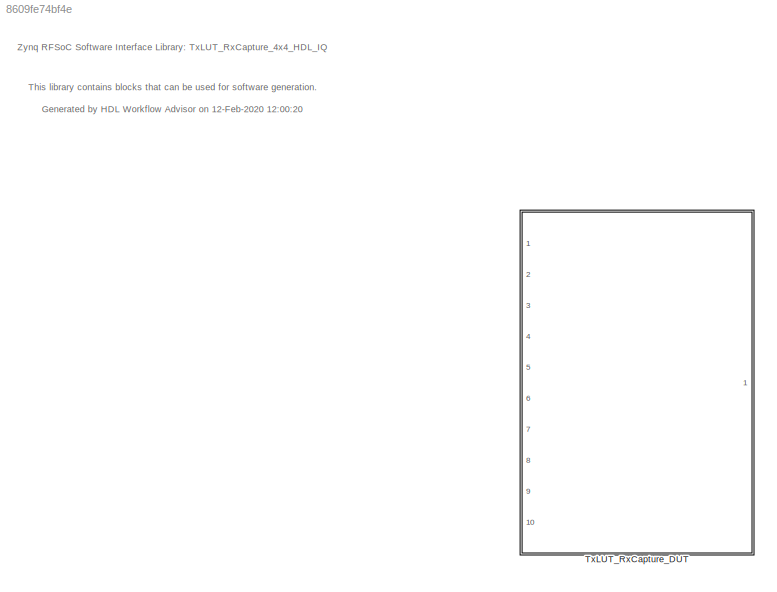
MODEL slx_8609fe74bf4e
KIND library
CONFIG AbsTol = auto
CONFIG EnableMultiTasking = off
CONFIG FixedStep = auto
CONFIG MaxStep = auto
CONFIG MinStep = auto
CONFIG RelTol = 1e-3
CONFIG SampleTimeConstraint = Unconstrained
CONFIG Solver = VariableStepAuto
CONFIG SolverName = VariableStepAuto
CONFIG StartTime = 0.0
CONFIG StopTime = 10.0
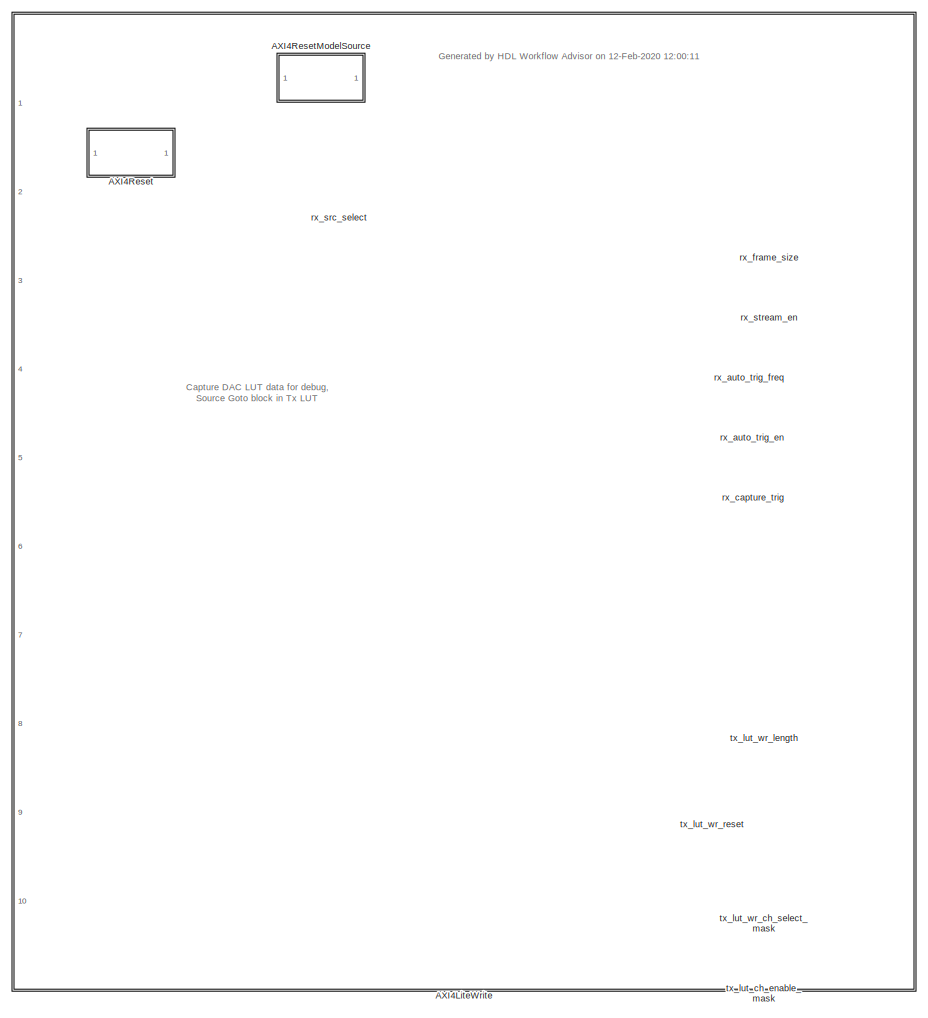
[diagram: TxLUT_RxCapture_DUT - part 1/2, center side, full height]
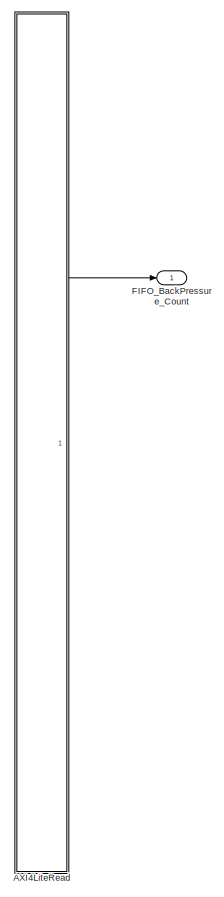
[diagram: TxLUT_RxCapture_DUT - part 2/2, right side, full height]
BLOCK [SubSystem] TxLUT_RxCapture_DUT
  Ports = [10, 1]
  RequestExecContextInheritance = off
  TreatAsAtomicUnit = on
  TreatAsGroupedWhenPropagatingVariantConditions = off
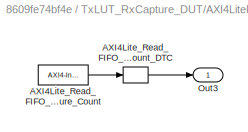
BLOCK [SubSystem] TxLUT_RxCapture_DUT/AXI4LiteRead
  Ports = [0, 1]
  Priority = 10
  RequestExecContextInheritance = off
BLOCK [Reference] TxLUT_RxCapture_DUT/AXI4LiteRead/AXI4Lite_Read_FIFO_BackPressure_Count  REF=axiinterfacelib/AXI4-Interface Read
  Ports = [0, 1]
  Priority = 5
  SourceBlock = axiinterfacelib/AXI4-Interface Read
  SourceProductBaseCode = ECZYNQ7000
  SourceProductName = Embedded Coder Support Package for Xilinx Zynq Platform
  SourceType = AXI4-Interface Read
BLOCK [DataTypeConversion] TxLUT_RxCapture_DUT/AXI4LiteRead/AXI4Lite_Read_FIFO_BackPressure_Count_DTC
  ConvertRealWorld = Stored Integer (SI)
  OutDataTypeStr = fixdt('uint32')
  RndMeth = Floor
  SaturateOnIntegerOverflow = off
BLOCK [Outport] TxLUT_RxCapture_DUT/AXI4LiteRead/Out3
  IconDisplay = Port number
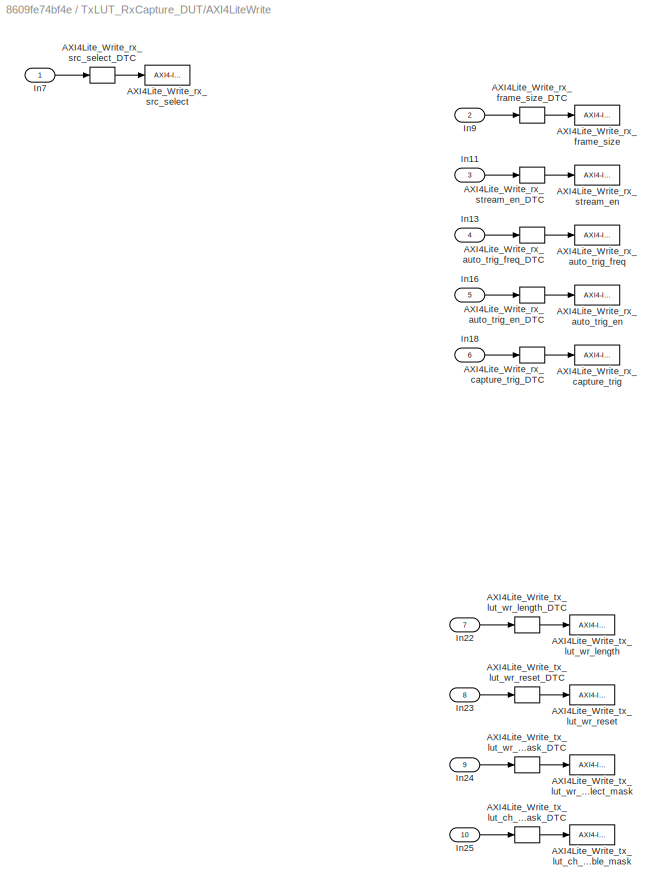
BLOCK [SubSystem] TxLUT_RxCapture_DUT/AXI4LiteWrite
  Ports = [10]
  Priority = 1
  RequestExecContextInheritance = off
BLOCK [Reference] TxLUT_RxCapture_DUT/AXI4LiteWrite/AXI4Lite_Write_rx_auto_trig_en  REF=axiinterfacelib/AXI4-Interface Write
  Ports = [1]
  Priority = 20
  SourceBlock = axiinterfacelib/AXI4-Interface Write
  SourceProductBaseCode = ECZYNQ7000
  SourceProductName = Embedded Coder Support Package for Xilinx Zynq Platform
  SourceType = AXI4-Interface Write
BLOCK [DataTypeConversion] TxLUT_RxCapture_DUT/AXI4LiteWrite/AXI4Lite_Write_rx_auto_trig_en_DTC
  ConvertRealWorld = Stored Integer (SI)
  OutDataTypeStr = uint32
  RndMeth = Floor
  SaturateOnIntegerOverflow = off
BLOCK [Reference] TxLUT_RxCapture_DUT/AXI4LiteWrite/AXI4Lite_Write_rx_auto_trig_freq  REF=axiinterfacelib/AXI4-Interface Write
  Ports = [1]
  Priority = 19
  SourceBlock = axiinterfacelib/AXI4-Interface Write
  SourceProductBaseCode = ECZYNQ7000
  SourceProductName = Embedded Coder Support Package for Xilinx Zynq Platform
  SourceType = AXI4-Interface Write
BLOCK [DataTypeConversion] TxLUT_RxCapture_DUT/AXI4LiteWrite/AXI4Lite_Write_rx_auto_trig_freq_DTC
  ConvertRealWorld = Stored Integer (SI)
  OutDataTypeStr = uint32
  RndMeth = Floor
  SaturateOnIntegerOverflow = off
BLOCK [Reference] TxLUT_RxCapture_DUT/AXI4LiteWrite/AXI4Lite_Write_rx_capture_trig  REF=axiinterfacelib/AXI4-Interface Write
  Ports = [1]
  Priority = 16
  SourceBlock = axiinterfacelib/AXI4-Interface Write
  SourceProductBaseCode = ECZYNQ7000
  SourceProductName = Embedded Coder Support Package for Xilinx Zynq Platform
  SourceType = AXI4-Interface Write
BLOCK [DataTypeConversion] TxLUT_RxCapture_DUT/AXI4LiteWrite/AXI4Lite_Write_rx_capture_trig_DTC
  ConvertRealWorld = Stored Integer (SI)
  OutDataTypeStr = uint32
  RndMeth = Floor
  SaturateOnIntegerOverflow = off
BLOCK [Reference] TxLUT_RxCapture_DUT/AXI4LiteWrite/AXI4Lite_Write_rx_frame_size  REF=axiinterfacelib/AXI4-Interface Write
  Ports = [1]
  Priority = 17
  SourceBlock = axiinterfacelib/AXI4-Interface Write
  SourceProductBaseCode = ECZYNQ7000
  SourceProductName = Embedded Coder Support Package for Xilinx Zynq Platform
  SourceType = AXI4-Interface Write
BLOCK [DataTypeConversion] TxLUT_RxCapture_DUT/AXI4LiteWrite/AXI4Lite_Write_rx_frame_size_DTC
  ConvertRealWorld = Stored Integer (SI)
  OutDataTypeStr = uint32
  RndMeth = Floor
  SaturateOnIntegerOverflow = off
BLOCK [Reference] TxLUT_RxCapture_DUT/AXI4LiteWrite/AXI4Lite_Write_rx_src_select  REF=axiinterfacelib/AXI4-Interface Write
  Ports = [1]
  Priority = 21
  SourceBlock = axiinterfacelib/AXI4-Interface Write
  SourceProductBaseCode = ECZYNQ7000
  SourceProductName = Embedded Coder Support Package for Xilinx Zynq Platform
  SourceType = AXI4-Interface Write
BLOCK [DataTypeConversion] TxLUT_RxCapture_DUT/AXI4LiteWrite/AXI4Lite_Write_rx_src_select_DTC
  ConvertRealWorld = Stored Integer (SI)
  OutDataTypeStr = uint32
  RndMeth = Floor
  SaturateOnIntegerOverflow = off
BLOCK [Reference] TxLUT_RxCapture_DUT/AXI4LiteWrite/AXI4Lite_Write_rx_stream_en  REF=axiinterfacelib/AXI4-Interface Write
  Ports = [1]
  Priority = 18
  SourceBlock = axiinterfacelib/AXI4-Interface Write
  SourceProductBaseCode = ECZYNQ7000
  SourceProductName = Embedded Coder Support Package for Xilinx Zynq Platform
  SourceType = AXI4-Interface Write
BLOCK [DataTypeConversion] TxLUT_RxCapture_DUT/AXI4LiteWrite/AXI4Lite_Write_rx_stream_en_DTC
  ConvertRealWorld = Stored Integer (SI)
  OutDataTypeStr = uint32
  RndMeth = Floor
  SaturateOnIntegerOverflow = off
BLOCK [Reference] TxLUT_RxCapture_DUT/AXI4LiteWrite/AXI4Lite_Write_tx_lut_ch_enable_mask  REF=axiinterfacelib/AXI4-Interface Write
  Ports = [1]
  Priority = 25
  SourceBlock = axiinterfacelib/AXI4-Interface Write
  SourceProductBaseCode = ECZYNQ7000
  SourceProductName = Embedded Coder Support Package for Xilinx Zynq Platform
  SourceType = AXI4-Interface Write
BLOCK [DataTypeConversion] TxLUT_RxCapture_DUT/AXI4LiteWrite/AXI4Lite_Write_tx_lut_ch_enable_mask_DTC
  ConvertRealWorld = Stored Integer (SI)
  OutDataTypeStr = uint32
  RndMeth = Floor
  SaturateOnIntegerOverflow = off
BLOCK [Reference] TxLUT_RxCapture_DUT/AXI4LiteWrite/AXI4Lite_Write_tx_lut_wr_ch_select_mask  REF=axiinterfacelib/AXI4-Interface Write
  Ports = [1]
  Priority = 24
  SourceBlock = axiinterfacelib/AXI4-Interface Write
  SourceProductBaseCode = ECZYNQ7000
  SourceProductName = Embedded Coder Support Package for Xilinx Zynq Platform
  SourceType = AXI4-Interface Write
BLOCK [DataTypeConversion] TxLUT_RxCapture_DUT/AXI4LiteWrite/AXI4Lite_Write_tx_lut_wr_ch_select_mask_DTC
  ConvertRealWorld = Stored Integer (SI)
  OutDataTypeStr = uint32
  RndMeth = Floor
  SaturateOnIntegerOverflow = off
BLOCK [Reference] TxLUT_RxCapture_DUT/AXI4LiteWrite/AXI4Lite_Write_tx_lut_wr_length  REF=axiinterfacelib/AXI4-Interface Write
  Ports = [1]
  Priority = 22
  SourceBlock = axiinterfacelib/AXI4-Interface Write
  SourceProductBaseCode = ECZYNQ7000
  SourceProductName = Embedded Coder Support Package for Xilinx Zynq Platform
  SourceType = AXI4-Interface Write
BLOCK [DataTypeConversion] TxLUT_RxCapture_DUT/AXI4LiteWrite/AXI4Lite_Write_tx_lut_wr_length_DTC
  ConvertRealWorld = Stored Integer (SI)
  OutDataTypeStr = uint32
  RndMeth = Floor
  SaturateOnIntegerOverflow = off
BLOCK [Reference] TxLUT_RxCapture_DUT/AXI4LiteWrite/AXI4Lite_Write_tx_lut_wr_reset  REF=axiinterfacelib/AXI4-Interface Write
  Ports = [1]
  Priority = 23
  SourceBlock = axiinterfacelib/AXI4-Interface Write
  SourceProductBaseCode = ECZYNQ7000
  SourceProductName = Embedded Coder Support Package for Xilinx Zynq Platform
  SourceType = AXI4-Interface Write
BLOCK [DataTypeConversion] TxLUT_RxCapture_DUT/AXI4LiteWrite/AXI4Lite_Write_tx_lut_wr_reset_DTC
  ConvertRealWorld = Stored Integer (SI)
  OutDataTypeStr = uint32
  RndMeth = Floor
  SaturateOnIntegerOverflow = off
BLOCK [Inport] TxLUT_RxCapture_DUT/AXI4LiteWrite/In11
  IconDisplay = Port number
  Port = 3
BLOCK [Inport] TxLUT_RxCapture_DUT/AXI4LiteWrite/In13
  IconDisplay = Port number
  Port = 4
BLOCK [Inport] TxLUT_RxCapture_DUT/AXI4LiteWrite/In16
  IconDisplay = Port number
  Port = 5
BLOCK [Inport] TxLUT_RxCapture_DUT/AXI4LiteWrite/In18
  IconDisplay = Port number
  Port = 6
BLOCK [Inport] TxLUT_RxCapture_DUT/AXI4LiteWrite/In22
  IconDisplay = Port number
  Port = 7
BLOCK [Inport] TxLUT_RxCapture_DUT/AXI4LiteWrite/In23
  IconDisplay = Port number
  Port = 8
BLOCK [Inport] TxLUT_RxCapture_DUT/AXI4LiteWrite/In24
  IconDisplay = Port number
  Port = 9
BLOCK [Inport] TxLUT_RxCapture_DUT/AXI4LiteWrite/In25
  IconDisplay = Port number
  Port = 10
BLOCK [Inport] TxLUT_RxCapture_DUT/AXI4LiteWrite/In7
  IconDisplay = Port number
BLOCK [Inport] TxLUT_RxCapture_DUT/AXI4LiteWrite/In9
  IconDisplay = Port number
  Port = 2
BLOCK [SubSystem] TxLUT_RxCapture_DUT/AXI4Reset
  CopyFcn = cccopyfcn(gcb)
  OpenFcn = ccopenfcn('System Start Function')
  Ports = []
  RequestExecContextInheritance = off
BLOCK [SubSystem] TxLUT_RxCapture_DUT/AXI4ResetModelSource
  CopyFcn = cccopyfcn(gcb)
  OpenFcn = ccopenfcn('Model Source')
  Ports = []
  RequestExecContextInheritance = off
BLOCK [Outport] TxLUT_RxCapture_DUT/FIFO_BackPressure_Count
  IconDisplay = Port number
  VectorParamsAs1DForOutWhenUnconnected = off
BLOCK [Inport] TxLUT_RxCapture_DUT/rx_auto_trig_en
  IconDisplay = Port number
  Port = 5
BLOCK [Inport] TxLUT_RxCapture_DUT/rx_auto_trig_freq
  IconDisplay = Port number
  Port = 4
BLOCK [Inport] TxLUT_RxCapture_DUT/rx_capture_trig
  IconDisplay = Port number
BLOCK [Inport] TxLUT_RxCapture_DUT/rx_frame_size
  IconDisplay = Port number
  Port = 2
BLOCK [Inport] TxLUT_RxCapture_DUT/rx_src_select
  IconDisplay = Port number
  OutDataTypeStr = fixdt(0,1,0)
  Port = 6
BLOCK [Inport] TxLUT_RxCapture_DUT/rx_stream_en
  IconDisplay = Port number
  Port = 3
BLOCK [Inport] TxLUT_RxCapture_DUT/tx_lut_ch_enable_mask
  IconDisplay = Port number
  Port = 10
BLOCK [Inport] TxLUT_RxCapture_DUT/tx_lut_wr_ch_select_mask
  IconDisplay = Port number
  Port = 9
BLOCK [Inport] TxLUT_RxCapture_DUT/tx_lut_wr_length
  IconDisplay = Port number
  Port = 7
BLOCK [Inport] TxLUT_RxCapture_DUT/tx_lut_wr_reset
  IconDisplay = Port number
  Port = 8
ANNOTATION (root): This library contains blocks that can be used for software generation. Generated by HDL Workflow Advisor on 12-Feb-2020 12:00:20
ANNOTATION (root): Zynq RFSoC Software Interface Library: TxLUT_RxCapture_4x4_HDL_IQ
ANNOTATION TxLUT_RxCapture_DUT: Capture DAC LUT data for debug, Source Goto block in Tx LUT
ANNOTATION TxLUT_RxCapture_DUT: Generated by HDL Workflow Advisor on 12-Feb-2020 12:00:11
LINE TxLUT_RxCapture_DUT/AXI4LiteRead/AXI4Lite_Read_FIFO_BackPressure_Count:1 -> TxLUT_RxCapture_DUT/AXI4LiteRead/AXI4Lite_Read_FIFO_BackPressure_Count_DTC:1
LINE TxLUT_RxCapture_DUT/AXI4LiteRead/AXI4Lite_Read_FIFO_BackPressure_Count_DTC:1 -> TxLUT_RxCapture_DUT/AXI4LiteRead/Out3:1
LINE TxLUT_RxCapture_DUT/AXI4LiteRead:1 -> TxLUT_RxCapture_DUT/FIFO_BackPressure_Count:1
LINE TxLUT_RxCapture_DUT/AXI4LiteWrite/AXI4Lite_Write_rx_auto_trig_en_DTC:1 -> TxLUT_RxCapture_DUT/AXI4LiteWrite/AXI4Lite_Write_rx_auto_trig_en:1
LINE TxLUT_RxCapture_DUT/AXI4LiteWrite/AXI4Lite_Write_rx_auto_trig_freq_DTC:1 -> TxLUT_RxCapture_DUT/AXI4LiteWrite/AXI4Lite_Write_rx_auto_trig_freq:1
LINE TxLUT_RxCapture_DUT/AXI4LiteWrite/AXI4Lite_Write_rx_capture_trig_DTC:1 -> TxLUT_RxCapture_DUT/AXI4LiteWrite/AXI4Lite_Write_rx_capture_trig:1
LINE TxLUT_RxCapture_DUT/AXI4LiteWrite/AXI4Lite_Write_rx_frame_size_DTC:1 -> TxLUT_RxCapture_DUT/AXI4LiteWrite/AXI4Lite_Write_rx_frame_size:1
LINE TxLUT_RxCapture_DUT/AXI4LiteWrite/AXI4Lite_Write_rx_src_select_DTC:1 -> TxLUT_RxCapture_DUT/AXI4LiteWrite/AXI4Lite_Write_rx_src_select:1
LINE TxLUT_RxCapture_DUT/AXI4LiteWrite/AXI4Lite_Write_rx_stream_en_DTC:1 -> TxLUT_RxCapture_DUT/AXI4LiteWrite/AXI4Lite_Write_rx_stream_en:1
LINE TxLUT_RxCapture_DUT/AXI4LiteWrite/AXI4Lite_Write_tx_lut_ch_enable_mask_DTC:1 -> TxLUT_RxCapture_DUT/AXI4LiteWrite/AXI4Lite_Write_tx_lut_ch_enable_mask:1
LINE TxLUT_RxCapture_DUT/AXI4LiteWrite/AXI4Lite_Write_tx_lut_wr_ch_select_mask_DTC:1 -> TxLUT_RxCapture_DUT/AXI4LiteWrite/AXI4Lite_Write_tx_lut_wr_ch_select_mask:1
LINE TxLUT_RxCapture_DUT/AXI4LiteWrite/AXI4Lite_Write_tx_lut_wr_length_DTC:1 -> TxLUT_RxCapture_DUT/AXI4LiteWrite/AXI4Lite_Write_tx_lut_wr_length:1
LINE TxLUT_RxCapture_DUT/AXI4LiteWrite/AXI4Lite_Write_tx_lut_wr_reset_DTC:1 -> TxLUT_RxCapture_DUT/AXI4LiteWrite/AXI4Lite_Write_tx_lut_wr_reset:1
LINE TxLUT_RxCapture_DUT/AXI4LiteWrite/In11:1 -> TxLUT_RxCapture_DUT/AXI4LiteWrite/AXI4Lite_Write_rx_stream_en_DTC:1
LINE TxLUT_RxCapture_DUT/AXI4LiteWrite/In13:1 -> TxLUT_RxCapture_DUT/AXI4LiteWrite/AXI4Lite_Write_rx_auto_trig_freq_DTC:1
LINE TxLUT_RxCapture_DUT/AXI4LiteWrite/In16:1 -> TxLUT_RxCapture_DUT/AXI4LiteWrite/AXI4Lite_Write_rx_auto_trig_en_DTC:1
LINE TxLUT_RxCapture_DUT/AXI4LiteWrite/In18:1 -> TxLUT_RxCapture_DUT/AXI4LiteWrite/AXI4Lite_Write_rx_capture_trig_DTC:1
LINE TxLUT_RxCapture_DUT/AXI4LiteWrite/In22:1 -> TxLUT_RxCapture_DUT/AXI4LiteWrite/AXI4Lite_Write_tx_lut_wr_length_DTC:1
LINE TxLUT_RxCapture_DUT/AXI4LiteWrite/In23:1 -> TxLUT_RxCapture_DUT/AXI4LiteWrite/AXI4Lite_Write_tx_lut_wr_reset_DTC:1
LINE TxLUT_RxCapture_DUT/AXI4LiteWrite/In24:1 -> TxLUT_RxCapture_DUT/AXI4LiteWrite/AXI4Lite_Write_tx_lut_wr_ch_select_mask_DTC:1
LINE TxLUT_RxCapture_DUT/AXI4LiteWrite/In25:1 -> TxLUT_RxCapture_DUT/AXI4LiteWrite/AXI4Lite_Write_tx_lut_ch_enable_mask_DTC:1
LINE TxLUT_RxCapture_DUT/AXI4LiteWrite/In7:1 -> TxLUT_RxCapture_DUT/AXI4LiteWrite/AXI4Lite_Write_rx_src_select_DTC:1
LINE TxLUT_RxCapture_DUT/AXI4LiteWrite/In9:1 -> TxLUT_RxCapture_DUT/AXI4LiteWrite/AXI4Lite_Write_rx_frame_size_DTC:1
LINE TxLUT_RxCapture_DUT/rx_auto_trig_en:1 -> TxLUT_RxCapture_DUT/AXI4LiteWrite:5
LINE TxLUT_RxCapture_DUT/rx_auto_trig_freq:1 -> TxLUT_RxCapture_DUT/AXI4LiteWrite:4
LINE TxLUT_RxCapture_DUT/rx_capture_trig:1 -> TxLUT_RxCapture_DUT/AXI4LiteWrite:6
LINE TxLUT_RxCapture_DUT/rx_frame_size:1 -> TxLUT_RxCapture_DUT/AXI4LiteWrite:2
LINE TxLUT_RxCapture_DUT/rx_src_select:1 -> TxLUT_RxCapture_DUT/AXI4LiteWrite:1
LINE TxLUT_RxCapture_DUT/rx_stream_en:1 -> TxLUT_RxCapture_DUT/AXI4LiteWrite:3
LINE TxLUT_RxCapture_DUT/tx_lut_ch_enable_mask:1 -> TxLUT_RxCapture_DUT/AXI4LiteWrite:10
LINE TxLUT_RxCapture_DUT/tx_lut_wr_ch_select_mask:1 -> TxLUT_RxCapture_DUT/AXI4LiteWrite:9
LINE TxLUT_RxCapture_DUT/tx_lut_wr_length:1 -> TxLUT_RxCapture_DUT/AXI4LiteWrite:7
LINE TxLUT_RxCapture_DUT/tx_lut_wr_reset:1 -> TxLUT_RxCapture_DUT/AXI4LiteWrite:8
